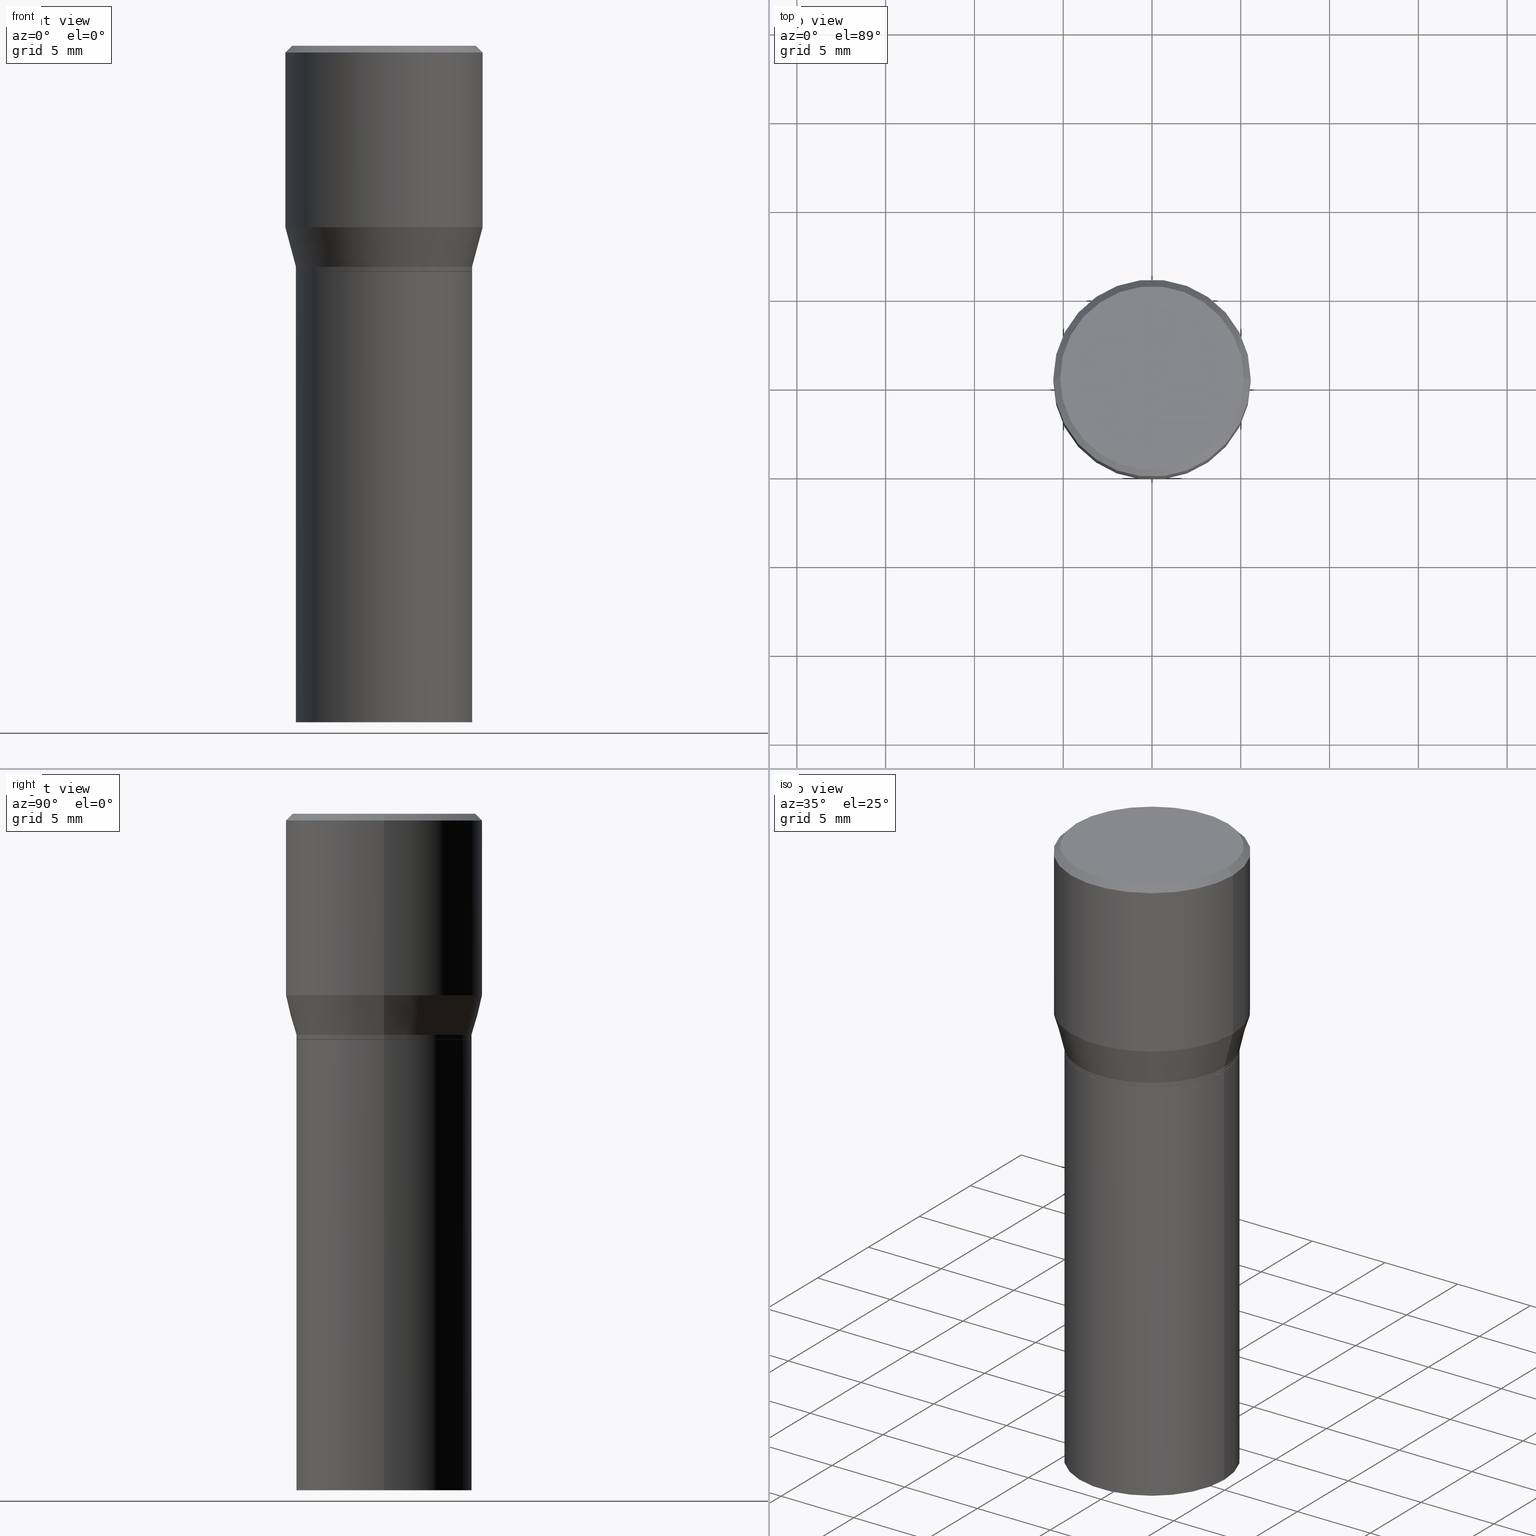
[diagram: canonical four-view strip — front | top / right | iso, engineering-drawing reading convention]
A machine part, canonical four-view strip (front | top / right | iso — engineering-drawing reading convention). The complete STEP part file that produces these views, byte-faithful:
ISO-10303-21;
HEADER;
FILE_DESCRIPTION (( 'STEP AP203' ),
    '1' );
FILE_NAME ('30349.STEP',
    '2024-03-13T16:08:32',
    ( '' ),
    ( '' ),
    'SwSTEP 2.0',
    'SolidWorks 2023',
    '' );
FILE_SCHEMA (( 'CONFIG_CONTROL_DESIGN' ));
ENDSEC;

DATA;
#1 = ORIENTED_EDGE ( 'NONE', *, *, #47, .T. ) ;
#2 =( NAMED_UNIT ( * ) SI_UNIT ( $, .STERADIAN. ) SOLID_ANGLE_UNIT ( ) );
#3 = CARTESIAN_POINT ( 'NONE',  ( -0.1952999999999999736, -3.231358930936662090E-16, -0.4900000000000001021 ) ) ;
#4 = CARTESIAN_POINT ( 'NONE',  ( -0.1953000000000000014, -2.103791375903670501E-15, -1.500000000000000222 ) ) ;
#5 = DIRECTION ( 'NONE',  ( 1.000000000000000000, -6.982962677686265922E-15, 0.000000000000000000 ) ) ;
#6 = ADVANCED_FACE ( 'NONE', ( #87 ), #302, .F. ) ;
#7 = CIRCLE ( 'NONE', #125, 0.1953000000000000014 ) ;
#8 = ORIENTED_EDGE ( 'NONE', *, *, #269, .F. ) ;
#9 = DIRECTION ( 'NONE',  ( -2.445468806185136597E-29, 3.491481338843145583E-15, 1.000000000000000000 ) ) ;
#10 = CALENDAR_DATE ( 2024, 13, 3 ) ;
#11 = ORIENTED_EDGE ( 'NONE', *, *, #136, .T. ) ;
#12 = FACE_OUTER_BOUND ( 'NONE', #127, .T. ) ;
#13 = EDGE_LOOP ( 'NONE', ( #238, #435, #278, #149 ) ) ;
#14 = EDGE_CURVE ( 'NONE', #396, #152, #409, .T. ) ;
#15 = CARTESIAN_POINT ( 'NONE',  ( 0.1952999999999999736, -1.363772610952127497E-15, 9.523173243129459375E-30 ) ) ;
#16 = CARTESIAN_POINT ( 'NONE',  ( -0.1952999999999999736, -8.704348440421619739E-17, -0.4900000000000001021 ) ) ;
#17 = AXIS2_PLACEMENT_3D ( 'NONE', #450, #308, #277 ) ;
#18 = DIRECTION ( 'NONE',  ( 1.000000000000000000, -6.982962677686265922E-15, 0.000000000000000000 ) ) ;
#19 = DIMENSIONAL_EXPONENTS ( 1.000000000000000000, 0.000000000000000000, 0.000000000000000000, 0.000000000000000000, 0.000000000000000000, 0.000000000000000000, 0.000000000000000000 ) ;
#20 = COORDINATED_UNIVERSAL_TIME_OFFSET ( 5, 0, .BEHIND. ) ;
#21 = CARTESIAN_POINT ( 'NONE',  ( -2.592568563193567003E-45, 3.701500806376036554E-31, 1.060151966214568974E-16 ) ) ;
#22 = SHAPE_DEFINITION_REPRESENTATION ( #121, #113 ) ;
#23 = AXIS2_PLACEMENT_3D ( 'NONE', #186, #430, #221 ) ;
#24 = ORIENTED_EDGE ( 'NONE', *, *, #235, .F. ) ;
#25 = DESIGN_CONTEXT ( 'detailed design', #193, 'design' ) ;
#26 = ORIENTED_EDGE ( 'NONE', *, *, #300, .T. ) ;
#27 = DIRECTION ( 'NONE',  ( -2.445468806185136597E-29, 3.491481338843145583E-15, 1.000000000000000000 ) ) ;
#28 = DIRECTION ( 'NONE',  ( 1.000000000000000000, -6.982962677686265922E-15, 4.876176775795934672E-29 ) ) ;
#29 = ADVANCED_FACE ( 'NONE', ( #12 ), #441, .F. ) ;
#30 = MECHANICAL_CONTEXT ( 'NONE', #138, 'mechanical' ) ;
#31 = CYLINDRICAL_SURFACE ( 'NONE', #215, 0.1953000000000000014 ) ;
#32 = AXIS2_PLACEMENT_3D ( 'NONE', #198, #124, #208 ) ;
#33 = AXIS2_PLACEMENT_3D ( 'NONE', #311, #309, #242 ) ;
#34 = DIRECTION ( 'NONE',  ( -2.445468806185136597E-29, 3.491481338843145583E-15, 1.000000000000000000 ) ) ;
#35 = ORIENTED_EDGE ( 'NONE', *, *, #119, .T. ) ;
#36 = EDGE_CURVE ( 'NONE', #396, #263, #356, .T. ) ;
#37 = LINE ( 'NONE', #457, #76 ) ;
#38 = ORIENTED_EDGE ( 'NONE', *, *, #413, .F. ) ;
#39 = PERSON_AND_ORGANIZATION ( #284, #373 ) ;
#40 = AXIS2_PLACEMENT_3D ( 'NONE', #433, #9, #368 ) ;
#41 = DIRECTION ( 'NONE',  ( 2.438088387897960049E-29, -3.491481338843145188E-15, -1.000000000000000000 ) ) ;
#42 = ORIENTED_EDGE ( 'NONE', *, *, #111, .T. ) ;
#43 = CIRCLE ( 'NONE', #313, 0.2187500000000000000 ) ;
#44 = AXIS2_PLACEMENT_3D ( 'NONE', #231, #156, #404 ) ;
#45 = AXIS2_PLACEMENT_3D ( 'NONE', #68, #27, #64 ) ;
#46 = ORIENTED_EDGE ( 'NONE', *, *, #175, .F. ) ;
#47 = EDGE_CURVE ( 'NONE', #82, #312, #239, .T. ) ;
#48 = EDGE_CURVE ( 'NONE', #306, #312, #43, .T. ) ;
#49 = EDGE_CURVE ( 'NONE', #266, #263, #340, .T. ) ;
#50 = EDGE_LOOP ( 'NONE', ( #408, #1, #216, #326 ) ) ;
#51 = CARTESIAN_POINT ( 'NONE',  ( 3.668203209277705088E-31, -5.237222008264718399E-17, -0.01499999999999999944 ) ) ;
#52 = FACE_OUTER_BOUND ( 'NONE', #440, .T. ) ;
#53 = ORIENTED_EDGE ( 'NONE', *, *, #133, .T. ) ;
#54 = CIRCLE ( 'NONE', #33, 0.1953000000000000014 ) ;
#55 = LINE ( 'NONE', #131, #280 ) ;
#56 = CC_DESIGN_PERSON_AND_ORGANIZATION_ASSIGNMENT ( #211, #169, ( #256 ) ) ;
#57 = PERSON_AND_ORGANIZATION ( #284, #373 ) ;
#58 = DIRECTION ( 'NONE',  ( -2.445468806185136597E-29, 3.491481338843145583E-15, 1.000000000000000000 ) ) ;
#59 = CONICAL_SURFACE ( 'NONE', #23, 0.2187500000000000000, 0.7853981633974450594 ) ;
#60 = ORIENTED_EDGE ( 'NONE', *, *, #324, .F. ) ;
#61 = CC_DESIGN_APPROVAL ( #330, ( #256 ) ) ;
#62 = DIRECTION ( 'NONE',  ( -2.445468806185136597E-29, 3.491481338843145583E-15, 1.000000000000000000 ) ) ;
#63 = DIRECTION ( 'NONE',  ( -2.445468806185136877E-29, 3.491481338843145188E-15, 1.000000000000000000 ) ) ;
#64 = DIRECTION ( 'NONE',  ( 1.000000000000000000, -6.982962677686266711E-15, 0.000000000000000000 ) ) ;
#65 = CARTESIAN_POINT ( 'NONE',  ( 3.668203209277705088E-31, -5.237222008264718399E-17, -0.01499999999999999944 ) ) ;
#66 = VERTEX_POINT ( 'NONE', #436 ) ;
#67 = AXIS2_PLACEMENT_3D ( 'NONE', #209, #447, #341 ) ;
#68 = CARTESIAN_POINT ( 'NONE',  ( 9.842606206466859638E-30, -1.405263310189985589E-15, -0.4024834085625100810 ) ) ;
#69 = CARTESIAN_POINT ( 'NONE',  ( 1.222734403092568719E-29, -1.745740669421573186E-15, -0.5000000000000001110 ) ) ;
#70 = VERTEX_POINT ( 'NONE', #75 ) ;
#71 = PERSON_AND_ORGANIZATION ( #284, #373 ) ;
#72 = CARTESIAN_POINT ( 'NONE',  ( 1.221511668689476057E-29, -1.743994928752151682E-15, -0.4995000000000001661 ) ) ;
#73 = DIRECTION ( 'NONE',  ( 1.000000000000000000, -6.982962677686267499E-15, 0.000000000000000000 ) ) ;
#74 = EDGE_CURVE ( 'NONE', #86, #266, #262, .T. ) ;
#75 = CARTESIAN_POINT ( 'NONE',  ( -0.1953000000000000014, -2.103791375903670501E-15, -0.5000000000000001110 ) ) ;
#76 = VECTOR ( 'NONE', #188, 39.37007874015748143 ) ;
#77 = CARTESIAN_POINT ( 'NONE',  ( 0.2187500000000000000, -1.579895305826517922E-15, -0.01499999999999999944 ) ) ;
#78 = SECURITY_CLASSIFICATION ( '', '', #90 ) ;
#79 = DIRECTION ( 'NONE',  ( -0.7071067811865452413, 2.468850131082233000E-15, -0.7071067811865497932 ) ) ;
#80 = DIRECTION ( 'NONE',  ( -2.445468806185136597E-29, 3.491481338843145583E-15, 1.000000000000000000 ) ) ;
#81 = EDGE_LOOP ( 'NONE', ( #123, #410, #8, #463 ) ) ;
#82 = VERTEX_POINT ( 'NONE', #117 ) ;
#83 = APPROVAL ( #107, 'UNSPECIFIED' ) ;
#84 = DIRECTION ( 'NONE',  ( 0.7071067811865715536, -2.468850131082509496E-15, 0.7071067811865232589 ) ) ;
#85 = APPROVAL_PERSON_ORGANIZATION ( #418, #464, #276 ) ;
#86 = VERTEX_POINT ( 'NONE', #445 ) ;
#87 = FACE_OUTER_BOUND ( 'NONE', #165, .T. ) ;
#88 = ORIENTED_EDGE ( 'NONE', *, *, #134, .F. ) ;
#89 = PERSON_AND_ORGANIZATION_ROLE ( 'design_supplier' ) ;
#90 = SECURITY_CLASSIFICATION_LEVEL ( 'unclassified' ) ;
#91 = EDGE_CURVE ( 'NONE', #86, #396, #416, .T. ) ;
#92 = AXIS2_PLACEMENT_3D ( 'NONE', #384, #58, #18 ) ;
#93 = CARTESIAN_POINT ( 'NONE',  ( -0.1952999999999999736, 1.387689962939475476E-15, -9.606680231267830396E-30 ) ) ;
#94 = CYLINDRICAL_SURFACE ( 'NONE', #237, 0.1953000000000000014 ) ;
#95 = PRODUCT_RELATED_PRODUCT_CATEGORY ( 'detail', '', ( #203 ) ) ;
#96 = CARTESIAN_POINT ( 'NONE',  ( 0.1948000000000000009, -3.106021799034858268E-15, -0.5000000000000001110 ) ) ;
#97 = FACE_OUTER_BOUND ( 'NONE', #118, .T. ) ;
#98 = AXIS2_PLACEMENT_3D ( 'NONE', #220, #282, #252 ) ;
#99 = DIRECTION ( 'NONE',  ( 1.000000000000000000, -6.982962677686265922E-15, 0.000000000000000000 ) ) ;
#100 = APPROVAL_ROLE ( '' ) ;
#101 = FACE_OUTER_BOUND ( 'NONE', #50, .T. ) ;
#102 = UNCERTAINTY_MEASURE_WITH_UNIT (LENGTH_MEASURE( 1.000000000000000082E-05 ), #388, 'distance_accuracy_value', 'NONE');
#103 = DIRECTION ( 'NONE',  ( -2.445468806185136597E-29, 3.491481338843145583E-15, 1.000000000000000000 ) ) ;
#104 = VECTOR ( 'NONE', #401, 39.37007874015748143 ) ;
#105 = ORIENTED_EDGE ( 'NONE', *, *, #155, .T. ) ;
#106 = LOCAL_TIME ( 12, 8, 32.00000000000000000, #135 ) ;
#107 = APPROVAL_STATUS ( 'not_yet_approved' ) ;
#108 = DIRECTION ( 'NONE',  ( -2.445468806185136597E-29, 3.491481338843145583E-15, 1.000000000000000000 ) ) ;
#109 =( NAMED_UNIT ( * ) PLANE_ANGLE_UNIT ( ) SI_UNIT ( $, .RADIAN. ) );
#110 = DIRECTION ( 'NONE',  ( -2.445468806185136597E-29, 3.491481338843145583E-15, 1.000000000000000000 ) ) ;
#111 = EDGE_CURVE ( 'NONE', #210, #70, #54, .T. ) ;
#112 = CARTESIAN_POINT ( 'NONE',  ( 1.222734403092568719E-29, -1.745740669421573186E-15, -0.5000000000000001110 ) ) ;
#113 = ADVANCED_BREP_SHAPE_REPRESENTATION ( '30349', ( #316, #455, #453 ), #381 ) ;
#114 = FACE_OUTER_BOUND ( 'NONE', #234, .T. ) ;
#115 = CIRCLE ( 'NONE', #45, 0.2187500000000000000 ) ;
#116 = EDGE_LOOP ( 'NONE', ( #370, #360, #24, #60 ) ) ;
#117 = CARTESIAN_POINT ( 'NONE',  ( 0.2037499999999999867, -1.475466312070559275E-15, 1.060151966214670170E-16 ) ) ;
#118 = EDGE_LOOP ( 'NONE', ( #295, #257, #105, #38 ) ) ;
#119 = EDGE_CURVE ( 'NONE', #263, #396, #347, .T. ) ;
#120 = DIRECTION ( 'NONE',  ( -2.438088387897960049E-29, 3.491481338843145188E-15, 1.000000000000000000 ) ) ;
#121 = PRODUCT_DEFINITION_SHAPE ( 'NONE', 'NONE',  #190 ) ;
#122 = CARTESIAN_POINT ( 'NONE',  ( 0.1952999999999999736, -3.074598466985269231E-15, -0.4900000000000001021 ) ) ;
#123 = ORIENTED_EDGE ( 'NONE', *, *, #164, .T. ) ;
#124 = DIRECTION ( 'NONE',  ( 2.438088387897960049E-29, -3.491481338843145188E-15, -1.000000000000000000 ) ) ;
#125 = AXIS2_PLACEMENT_3D ( 'NONE', #395, #456, #358 ) ;
#126 = CONICAL_SURFACE ( 'NONE', #176, 0.1948000000000000009, 0.7853981633974824739 ) ;
#127 = EDGE_LOOP ( 'NONE', ( #42, #375 ) ) ;
#128 = EDGE_LOOP ( 'NONE', ( #137, #223, #264, #204 ) ) ;
#129 = AXIS2_PLACEMENT_3D ( 'NONE', #267, #411, #5 ) ;
#130 = DATE_TIME_ROLE ( 'classification_date' ) ;
#131 = CARTESIAN_POINT ( 'NONE',  ( -0.2187500000000000000, 1.554312234475219157E-15, -1.076017050993260622E-29 ) ) ;
#132 = LOCAL_TIME ( 12, 8, 32.00000000000000000, #251 ) ;
#133 = EDGE_CURVE ( 'NONE', #82, #225, #334, .T. ) ;
#134 = EDGE_CURVE ( 'NONE', #152, #306, #55, .T. ) ;
#135 = COORDINATED_UNIVERSAL_TIME_OFFSET ( 5, 0, .BEHIND. ) ;
#136 = EDGE_CURVE ( 'NONE', #225, #82, #412, .T. ) ;
#137 = ORIENTED_EDGE ( 'NONE', *, *, #379, .F. ) ;
#138 = APPLICATION_CONTEXT ( 'configuration controlled 3d designs of mechanical parts and assemblies' ) ;
#139 = CARTESIAN_POINT ( 'NONE',  ( 9.842606206466859638E-30, -1.405263310189985589E-15, -0.4024834085625100810 ) ) ;
#140 = CALENDAR_DATE ( 2024, 13, 3 ) ;
#141 = CLOSED_SHELL ( 'NONE', ( #191, #160, #226, #348, #390, #288, #349, #331, #365, #437, #310, #227 ) ) ;
#142 = CARTESIAN_POINT ( 'NONE',  ( 1.198279715030717173E-29, -1.710825856033141537E-15, -0.4900000000000001021 ) ) ;
#143 = VECTOR ( 'NONE', #84, 39.37007874015748854 ) ;
#144 = ORIENTED_EDGE ( 'NONE', *, *, #155, .F. ) ;
#145 = APPROVAL_STATUS ( 'not_yet_approved' ) ;
#146 = CARTESIAN_POINT ( 'NONE',  ( 0.1953000000000000014, -3.109513280373700880E-15, -0.5000000000000001110 ) ) ;
#147 = ADVANCED_FACE ( 'NONE', ( #382 ), #94, .T. ) ;
#148 = CARTESIAN_POINT ( 'NONE',  ( 0.000000000000000000, 0.000000000000000000, 0.000000000000000000 ) ) ;
#149 = ORIENTED_EDGE ( 'NONE', *, *, #49, .F. ) ;
#150 = DIRECTION ( 'NONE',  ( 0.000000000000000000, 0.000000000000000000, 1.000000000000000000 ) ) ;
#151 = CARTESIAN_POINT ( 'NONE',  ( 0.1952999999999999736, -3.074598466985269231E-15, -0.4900000000000001021 ) ) ;
#152 = VERTEX_POINT ( 'NONE', #327 ) ;
#153 = AXIS2_PLACEMENT_3D ( 'NONE', #65, #355, #361 ) ;
#154 = FACE_OUTER_BOUND ( 'NONE', #317, .T. ) ;
#155 = EDGE_CURVE ( 'NONE', #66, #210, #389, .T. ) ;
#156 = DIRECTION ( 'NONE',  ( -2.445468806185136597E-29, 3.491481338843145583E-15, 1.000000000000000000 ) ) ;
#157 = CARTESIAN_POINT ( 'NONE',  ( 0.2187500000000000000, -1.553106157095169608E-15, -0.01499999999999999944 ) ) ;
#158 = VECTOR ( 'NONE', #265, 39.37007874015748143 ) ;
#159 = DIRECTION ( 'NONE',  ( -1.000000000000000000, 6.982962677686265922E-15, -4.876176775795935793E-29 ) ) ;
#160 = ADVANCED_FACE ( 'NONE', ( #466 ), #232, .T. ) ;
#161 = ORIENTED_EDGE ( 'NONE', *, *, #268, .F. ) ;
#162 = CARTESIAN_POINT ( 'NONE',  ( 3.576687321579069994E-29, -5.368277968210015545E-15, -1.500000000000000222 ) ) ;
#163 = CARTESIAN_POINT ( 'NONE',  ( 0.000000000000000000, 0.000000000000000000, 0.000000000000000000 ) ) ;
#164 = EDGE_CURVE ( 'NONE', #332, #283, #392, .T. ) ;
#165 = EDGE_LOOP ( 'NONE', ( #236, #46 ) ) ;
#166 = ORIENTED_EDGE ( 'NONE', *, *, #48, .F. ) ;
#167 = CARTESIAN_POINT ( 'NONE',  ( 0.2187500000000000000, -2.932786395933856235E-15, -0.4024834085625100810 ) ) ;
#168 = VECTOR ( 'NONE', #63, 39.37007874015748143 ) ;
#169 = PERSON_AND_ORGANIZATION_ROLE ( 'creator' ) ;
#170 = CC_DESIGN_PERSON_AND_ORGANIZATION_ASSIGNMENT ( #351, #181, ( #190 ) ) ;
#171 = LINE ( 'NONE', #421, #158 ) ;
#172 = DIRECTION ( 'NONE',  ( 2.445468806185136597E-29, -3.491481338843145583E-15, -1.000000000000000000 ) ) ;
#173 = APPROVAL_DATE_TIME ( #415, #330 ) ;
#174 = DIRECTION ( 'NONE',  ( -2.445468806185136597E-29, 3.491481338843145583E-15, 1.000000000000000000 ) ) ;
#175 = EDGE_CURVE ( 'NONE', #350, #66, #270, .T. ) ;
#176 = AXIS2_PLACEMENT_3D ( 'NONE', #112, #205, #73 ) ;
#177 = CC_DESIGN_APPROVAL ( #464, ( #78 ) ) ;
#178 = ORIENTED_EDGE ( 'NONE', *, *, #374, .F. ) ;
#179 = FACE_OUTER_BOUND ( 'NONE', #428, .T. ) ;
#180 = ORIENTED_EDGE ( 'NONE', *, *, #14, .F. ) ;
#181 = PERSON_AND_ORGANIZATION_ROLE ( 'creator' ) ;
#182 = FACE_OUTER_BOUND ( 'NONE', #289, .T. ) ;
#183 = EDGE_LOOP ( 'NONE', ( #199, #419, #26, #187 ) ) ;
#184 = LINE ( 'NONE', #323, #143 ) ;
#185 = EDGE_CURVE ( 'NONE', #283, #332, #222, .T. ) ;
#186 = CARTESIAN_POINT ( 'NONE',  ( 3.668203209277705088E-31, -5.237222008264718399E-17, -0.01499999999999999944 ) ) ;
#187 = ORIENTED_EDGE ( 'NONE', *, *, #48, .T. ) ;
#188 = DIRECTION ( 'NONE',  ( -2.445468806185136877E-29, 3.491481338843145188E-15, 1.000000000000000000 ) ) ;
#189 = ORIENTED_EDGE ( 'NONE', *, *, #374, .T. ) ;
#190 = PRODUCT_DEFINITION ( 'UNKNOWN', '', #256, #25 ) ;
#191 = ADVANCED_FACE ( 'NONE', ( #425 ), #364, .T. ) ;
#192 = APPROVAL_DATE_TIME ( #285, #83 ) ;
#193 = APPLICATION_CONTEXT ( 'configuration controlled 3d designs of mechanical parts and assemblies' ) ;
#194 = CONICAL_SURFACE ( 'NONE', #357, 0.1952999999999999736, 0.2617993877991501295 ) ;
#195 = CC_DESIGN_SECURITY_CLASSIFICATION ( #78, ( #256 ) ) ;
#196 = ORIENTED_EDGE ( 'NONE', *, *, #14, .T. ) ;
#197 = DIRECTION ( 'NONE',  ( 1.000000000000000000, -6.982962677686266711E-15, 4.876176775795935232E-29 ) ) ;
#198 = CARTESIAN_POINT ( 'NONE',  ( 1.363772610952139922E-15, 0.1952999999999982528, -0.5000000000000007772 ) ) ;
#199 = ORIENTED_EDGE ( 'NONE', *, *, #47, .F. ) ;
#200 = AXIS2_PLACEMENT_3D ( 'NONE', #391, #103, #230 ) ;
#201 = FACE_OUTER_BOUND ( 'NONE', #128, .T. ) ;
#202 = AXIS2_PLACEMENT_3D ( 'NONE', #461, #429, #281 ) ;
#203 = PRODUCT ( '30349', '30349', '', ( #30 ) ) ;
#204 = ORIENTED_EDGE ( 'NONE', *, *, #74, .F. ) ;
#205 = DIRECTION ( 'NONE',  ( -2.445468806185136597E-29, 3.491481338843145583E-15, 1.000000000000000000 ) ) ;
#206 = FACE_OUTER_BOUND ( 'NONE', #116, .T. ) ;
#207 = ORIENTED_EDGE ( 'NONE', *, *, #91, .F. ) ;
#208 = DIRECTION ( 'NONE',  ( -1.000000000000000000, 6.982962677686265922E-15, -4.876176775795935793E-29 ) ) ;
#209 = CARTESIAN_POINT ( 'NONE',  ( 1.198279715030717173E-29, -1.710825856033141537E-15, -0.4900000000000001021 ) ) ;
#210 = VERTEX_POINT ( 'NONE', #146 ) ;
#211 = PERSON_AND_ORGANIZATION ( #284, #373 ) ;
#212 = VECTOR ( 'NONE', #272, 39.37007874015747433 ) ;
#213 = DATE_AND_TIME ( #449, #106 ) ;
#214 = PERSON_AND_ORGANIZATION_ROLE ( 'classification_officer' ) ;
#215 = AXIS2_PLACEMENT_3D ( 'NONE', #387, #62, #218 ) ;
#216 = ORIENTED_EDGE ( 'NONE', *, *, #235, .T. ) ;
#217 = PLANE ( 'NONE',  #202 ) ;
#218 = DIRECTION ( 'NONE',  ( 1.000000000000000000, -6.982962677686265922E-15, 4.876176775795935793E-29 ) ) ;
#219 = COORDINATED_UNIVERSAL_TIME_OFFSET ( 5, 0, .BEHIND. ) ;
#220 = CARTESIAN_POINT ( 'NONE',  ( 1.222734403092568719E-29, -1.745740669421573186E-15, -0.5000000000000001110 ) ) ;
#221 = DIRECTION ( 'NONE',  ( -1.000000000000000000, 6.982962677686266711E-15, 0.000000000000000000 ) ) ;
#222 = CIRCLE ( 'NONE', #366, 0.1948000000000000009 ) ;
#223 = ORIENTED_EDGE ( 'NONE', *, *, #185, .T. ) ;
#224 = DIRECTION ( 'NONE',  ( 1.000000000000000000, -6.982962677686267499E-15, 0.000000000000000000 ) ) ;
#225 = VERTEX_POINT ( 'NONE', #287 ) ;
#226 = ADVANCED_FACE ( 'NONE', ( #101 ), #59, .T. ) ;
#227 = ADVANCED_FACE ( 'NONE', ( #179 ), #427, .T. ) ;
#228 = EDGE_CURVE ( 'NONE', #66, #350, #7, .T. ) ;
#229 = APPROVAL_ROLE ( '' ) ;
#230 = DIRECTION ( 'NONE',  ( 1.000000000000000000, -6.982962677686269077E-15, 0.000000000000000000 ) ) ;
#231 = CARTESIAN_POINT ( 'NONE',  ( 1.221511668689476057E-29, -1.743994928752151682E-15, -0.4995000000000001661 ) ) ;
#232 = CONICAL_SURFACE ( 'NONE', #304, 0.1948000000000000009, 0.7853981633974824739 ) ;
#233 = CARTESIAN_POINT ( 'NONE',  ( 1.422778645578576487E-15, 0.2037499999999999867, -6.583817244785623957E-16 ) ) ;
#234 = EDGE_LOOP ( 'NONE', ( #11, #53 ) ) ;
#235 = EDGE_CURVE ( 'NONE', #312, #306, #292, .T. ) ;
#236 = ORIENTED_EDGE ( 'NONE', *, *, #228, .F. ) ;
#237 = AXIS2_PLACEMENT_3D ( 'NONE', #344, #321, #462 ) ;
#238 = ORIENTED_EDGE ( 'NONE', *, *, #269, .T. ) ;
#239 = LINE ( 'NONE', #157, #451 ) ;
#240 = CC_DESIGN_PERSON_AND_ORGANIZATION_ASSIGNMENT ( #378, #89, ( #256 ) ) ;
#241 = CARTESIAN_POINT ( 'NONE',  ( -0.1948000000000000009, -3.616034201608981156E-16, -0.5000000000000001110 ) ) ;
#242 = DIRECTION ( 'NONE',  ( 1.000000000000000000, -6.982962677686264344E-15, 0.000000000000000000 ) ) ;
#243 = CIRCLE ( 'NONE', #335, 0.1953000000000000014 ) ;
#244 = DIRECTION ( 'NONE',  ( 1.000000000000000000, -6.982962677686266711E-15, 4.875065411617369217E-29 ) ) ;
#245 = EDGE_CURVE ( 'NONE', #350, #70, #37, .T. ) ;
#246 = DIRECTION ( 'NONE',  ( -1.000000000000000000, 6.982962677686266711E-15, 0.000000000000000000 ) ) ;
#247 = AXIS2_PLACEMENT_3D ( 'NONE', #233, #41, #159 ) ;
#248 = CARTESIAN_POINT ( 'NONE',  ( 0.000000000000000000, 0.000000000000000000, 0.000000000000000000 ) ) ;
#249 = DIRECTION ( 'NONE',  ( 1.000000000000000000, -6.982962677686264344E-15, 0.000000000000000000 ) ) ;
#250 = CARTESIAN_POINT ( 'NONE',  ( 1.222734403092568719E-29, -1.745740669421573186E-15, -0.5000000000000001110 ) ) ;
#251 = COORDINATED_UNIVERSAL_TIME_OFFSET ( 5, 0, .BEHIND. ) ;
#252 = DIRECTION ( 'NONE',  ( 1.000000000000000000, -6.982962677686267499E-15, 0.000000000000000000 ) ) ;
#253 = APPLICATION_PROTOCOL_DEFINITION ( 'international standard', 'config_control_design', 1994, #193 ) ;
#254 = DIRECTION ( 'NONE',  ( 1.000000000000000000, -6.982962677686265922E-15, 4.876176775795934672E-29 ) ) ;
#255 = AXIS2_PLACEMENT_3D ( 'NONE', #148, #460, #28 ) ;
#256 = PRODUCT_DEFINITION_FORMATION_WITH_SPECIFIED_SOURCE ( 'ANY', '', #203, .NOT_KNOWN. ) ;
#257 = ORIENTED_EDGE ( 'NONE', *, *, #175, .T. ) ;
#258 = APPLICATION_PROTOCOL_DEFINITION ( 'international standard', 'config_control_design', 1994, #138 ) ;
#259 = DIRECTION ( 'NONE',  ( 1.000000000000000000, -6.982962677686266711E-15, 0.000000000000000000 ) ) ;
#260 = DIRECTION ( 'NONE',  ( 1.000000000000000000, -6.982962677686265922E-15, 4.876176775795935793E-29 ) ) ;
#261 = DIRECTION ( 'NONE',  ( 1.000000000000000000, -6.982962677686266711E-15, 0.000000000000000000 ) ) ;
#262 = CIRCLE ( 'NONE', #44, 0.1953000000000000014 ) ;
#263 = VERTEX_POINT ( 'NONE', #151 ) ;
#264 = ORIENTED_EDGE ( 'NONE', *, *, #290, .T. ) ;
#265 = DIRECTION ( 'NONE',  ( -2.445468806185136877E-29, 3.491481338843145188E-15, 1.000000000000000000 ) ) ;
#266 = VERTEX_POINT ( 'NONE', #286 ) ;
#267 = CARTESIAN_POINT ( 'NONE',  ( 1.198279715030717173E-29, -1.710825856033141537E-15, -0.4900000000000001021 ) ) ;
#268 = EDGE_CURVE ( 'NONE', #407, #152, #329, .T. ) ;
#269 = EDGE_CURVE ( 'NONE', #266, #86, #296, .T. ) ;
#270 = CIRCLE ( 'NONE', #200, 0.1953000000000000014 ) ;
#271 = ORIENTED_EDGE ( 'NONE', *, *, #417, .T. ) ;
#272 = DIRECTION ( 'NONE',  ( 0.2588190451025214611, 1.565188264969621573E-15, 0.9659258262890682012 ) ) ;
#273 = CALENDAR_DATE ( 2024, 13, 3 ) ;
#274 = ADVANCED_FACE ( 'NONE', ( #97 ), #31, .T. ) ;
#275 = LOCAL_TIME ( 12, 8, 32.00000000000000000, #363 ) ;
#276 = APPROVAL_ROLE ( '' ) ;
#277 = DIRECTION ( 'NONE',  ( 1.000000000000000000, -6.982962677686266711E-15, 4.875065411617369217E-29 ) ) ;
#278 = ORIENTED_EDGE ( 'NONE', *, *, #119, .F. ) ;
#279 = DIRECTION ( 'NONE',  ( -2.445468806185136597E-29, 3.491481338843145583E-15, 1.000000000000000000 ) ) ;
#280 = VECTOR ( 'NONE', #343, 39.37007874015748143 ) ;
#281 = DIRECTION ( 'NONE',  ( 1.000000000000000000, -6.982962677686265922E-15, 4.876176775795935793E-29 ) ) ;
#282 = DIRECTION ( 'NONE',  ( -2.445468806185136597E-29, 3.491481338843145583E-15, 1.000000000000000000 ) ) ;
#283 = VERTEX_POINT ( 'NONE', #353 ) ;
#284 = PERSON ( 'UNSPECIFIED', 'UNSPECIFIED', 'UNSPECIFIED', ('UNSPECIFIED'), ('UNSPECIFIED'), ('UNSPECIFIED') ) ;
#285 = DATE_AND_TIME ( #140, #275 ) ;
#286 = CARTESIAN_POINT ( 'NONE',  ( 0.1953000000000000014, -3.107767539704279377E-15, -0.4995000000000001661 ) ) ;
#287 = CARTESIAN_POINT ( 'NONE',  ( -0.2037499999999999867, 1.448964755619900421E-15, 1.060151966214468518E-16 ) ) ;
#288 = ADVANCED_FACE ( 'NONE', ( #182 ), #194, .T. ) ;
#289 = EDGE_LOOP ( 'NONE', ( #180, #385, #189, #328 ) ) ;
#290 = EDGE_CURVE ( 'NONE', #332, #266, #184, .T. ) ;
#291 = CARTESIAN_POINT ( 'NONE',  ( 0.1953000000000000014, -1.363772610952127695E-15, 9.523173243129462177E-30 ) ) ;
#292 = CIRCLE ( 'NONE', #153, 0.2187500000000000000 ) ;
#293 = APPROVAL_PERSON_ORGANIZATION ( #39, #83, #229 ) ;
#294 = FACE_OUTER_BOUND ( 'NONE', #301, .T. ) ;
#295 = ORIENTED_EDGE ( 'NONE', *, *, #245, .F. ) ;
#296 = CIRCLE ( 'NONE', #342, 0.1953000000000000014 ) ;
#297 = APPROVAL_PERSON_ORGANIZATION ( #459, #330, #100 ) ;
#298 = ORIENTED_EDGE ( 'NONE', *, *, #164, .F. ) ;
#299 = LINE ( 'NONE', #122, #212 ) ;
#300 = EDGE_CURVE ( 'NONE', #225, #306, #432, .T. ) ;
#301 = EDGE_LOOP ( 'NONE', ( #88, #271, #448, #166 ) ) ;
#302 = PLANE ( 'NONE',  #402 ) ;
#303 = ORIENTED_EDGE ( 'NONE', *, *, #245, .T. ) ;
#304 = AXIS2_PLACEMENT_3D ( 'NONE', #69, #325, #224 ) ;
#305 = CARTESIAN_POINT ( 'NONE',  ( 1.222734403092568719E-29, -1.745740669421573186E-15, -0.5000000000000001110 ) ) ;
#306 = VERTEX_POINT ( 'NONE', #367 ) ;
#307 = DATE_AND_TIME ( #273, #315 ) ;
#308 = DIRECTION ( 'NONE',  ( -2.445468806185136597E-29, 3.491481338843145583E-15, 1.000000000000000000 ) ) ;
#309 = DIRECTION ( 'NONE',  ( -2.445468806185136597E-29, 3.491481338843145583E-15, 1.000000000000000000 ) ) ;
#310 = ADVANCED_FACE ( 'NONE', ( #201 ), #126, .T. ) ;
#311 = CARTESIAN_POINT ( 'NONE',  ( 1.222734403092568719E-29, -1.745740669421573186E-15, -0.5000000000000001110 ) ) ;
#312 = VERTEX_POINT ( 'NONE', #77 ) ;
#313 = AXIS2_PLACEMENT_3D ( 'NONE', #51, #110, #261 ) ;
#314 = VECTOR ( 'NONE', #79, 39.37007874015748143 ) ;
#315 = LOCAL_TIME ( 12, 8, 32.00000000000000000, #20 ) ;
#316 = MANIFOLD_SOLID_BREP ( 'Body-Move/Copy2[1]', #371 ) ;
#317 = EDGE_LOOP ( 'NONE', ( #298, #337 ) ) ;
#318 = CC_DESIGN_DATE_AND_TIME_ASSIGNMENT ( #354, #322, ( #190 ) ) ;
#319 = DIRECTION ( 'NONE',  ( -2.445468806185136597E-29, 3.491481338843145583E-15, 1.000000000000000000 ) ) ;
#320 = CALENDAR_DATE ( 2024, 13, 3 ) ;
#321 = DIRECTION ( 'NONE',  ( -2.445468806185136597E-29, 3.491481338843145583E-15, 1.000000000000000000 ) ) ;
#322 = DATE_TIME_ROLE ( 'creation_date' ) ;
#323 = CARTESIAN_POINT ( 'NONE',  ( 0.1948000000000000009, -3.106021799034858268E-15, -0.5000000000000001110 ) ) ;
#324 = EDGE_CURVE ( 'NONE', #407, #312, #171, .T. ) ;
#325 = DIRECTION ( 'NONE',  ( -2.445468806185136597E-29, 3.491481338843145583E-15, 1.000000000000000000 ) ) ;
#326 = ORIENTED_EDGE ( 'NONE', *, *, #300, .F. ) ;
#327 = CARTESIAN_POINT ( 'NONE',  ( -0.2187500000000000000, 1.490489242852337896E-16, -0.4024834085625100810 ) ) ;
#328 = ORIENTED_EDGE ( 'NONE', *, *, #417, .F. ) ;
#329 = CIRCLE ( 'NONE', #422, 0.2187500000000000000 ) ;
#330 = APPROVAL ( #145, 'UNSPECIFIED' ) ;
#331 = ADVANCED_FACE ( 'NONE', ( #352 ), #386, .T. ) ;
#332 = VERTEX_POINT ( 'NONE', #96 ) ;
#333 = VECTOR ( 'NONE', #338, 39.37007874015747433 ) ;
#334 = CIRCLE ( 'NONE', #17, 0.2037499999999999867 ) ;
#335 = AXIS2_PLACEMENT_3D ( 'NONE', #305, #431, #249 ) ;
#336 = CYLINDRICAL_SURFACE ( 'NONE', #40, 0.2187500000000000000 ) ;
#337 = ORIENTED_EDGE ( 'NONE', *, *, #185, .F. ) ;
#338 = DIRECTION ( 'NONE',  ( -0.2588190451025214611, 5.211531920934551042E-15, 0.9659258262890682012 ) ) ;
#339 = ORIENTED_EDGE ( 'NONE', *, *, #49, .T. ) ;
#340 = LINE ( 'NONE', #15, #104 ) ;
#341 = DIRECTION ( 'NONE',  ( 1.000000000000000000, -6.982962677686265922E-15, 0.000000000000000000 ) ) ;
#342 = AXIS2_PLACEMENT_3D ( 'NONE', #72, #279, #420 ) ;
#343 = DIRECTION ( 'NONE',  ( -2.445468806185136877E-29, 3.491481338843145188E-15, 1.000000000000000000 ) ) ;
#344 = CARTESIAN_POINT ( 'NONE',  ( 0.000000000000000000, 0.000000000000000000, 0.000000000000000000 ) ) ;
#345 = CARTESIAN_POINT ( 'NONE',  ( 3.668203209277705088E-31, -5.237222008264718399E-17, -0.01499999999999999944 ) ) ;
#346 = APPROVAL_DATE_TIME ( #213, #464 ) ;
#347 = CIRCLE ( 'NONE', #92, 0.1952999999999999736 ) ;
#348 = ADVANCED_FACE ( 'NONE', ( #206 ), #336, .T. ) ;
#349 = ADVANCED_FACE ( 'NONE', ( #294 ), #406, .T. ) ;
#350 = VERTEX_POINT ( 'NONE', #4 ) ;
#351 = PERSON_AND_ORGANIZATION ( #284, #373 ) ;
#352 = FACE_OUTER_BOUND ( 'NONE', #183, .T. ) ;
#353 = CARTESIAN_POINT ( 'NONE',  ( -0.1948000000000000009, -3.589541929867870625E-16, -0.5000000000000001110 ) ) ;
#354 = DATE_AND_TIME ( #320, #423 ) ;
#355 = DIRECTION ( 'NONE',  ( -2.445468806185136597E-29, 3.491481338843145583E-15, 1.000000000000000000 ) ) ;
#356 = CIRCLE ( 'NONE', #129, 0.1952999999999999736 ) ;
#357 = AXIS2_PLACEMENT_3D ( 'NONE', #142, #424, #99 ) ;
#358 = DIRECTION ( 'NONE',  ( 1.000000000000000000, -6.982962677686269077E-15, 0.000000000000000000 ) ) ;
#359 = CC_DESIGN_DATE_AND_TIME_ASSIGNMENT ( #307, #130, ( #78 ) ) ;
#360 = ORIENTED_EDGE ( 'NONE', *, *, #134, .T. ) ;
#361 = DIRECTION ( 'NONE',  ( 1.000000000000000000, -6.982962677686266711E-15, 0.000000000000000000 ) ) ;
#362 = ORIENTED_EDGE ( 'NONE', *, *, #228, .T. ) ;
#363 = COORDINATED_UNIVERSAL_TIME_OFFSET ( 5, 0, .BEHIND. ) ;
#364 = CYLINDRICAL_SURFACE ( 'NONE', #255, 0.1952999999999999736 ) ;
#365 = ADVANCED_FACE ( 'NONE', ( #114 ), #439, .F. ) ;
#366 = AXIS2_PLACEMENT_3D ( 'NONE', #250, #34, #398 ) ;
#367 = CARTESIAN_POINT ( 'NONE',  ( -0.2187500000000000000, 8.254944693389027239E-16, -0.01499999999999999944 ) ) ;
#368 = DIRECTION ( 'NONE',  ( 1.000000000000000000, -6.982962677686266711E-15, 4.876176775795935232E-29 ) ) ;
#369 = ORIENTED_EDGE ( 'NONE', *, *, #111, .F. ) ;
#370 = ORIENTED_EDGE ( 'NONE', *, *, #268, .T. ) ;
#371 = CLOSED_SHELL ( 'NONE', ( #147, #6, #274, #29 ) ) ;
#372 = AXIS2_PLACEMENT_3D ( 'NONE', #248, #319, #254 ) ;
#373 = ORGANIZATION ( 'UNSPECIFIED', 'UNSPECIFIED', '' ) ;
#374 = EDGE_CURVE ( 'NONE', #263, #407, #299, .T. ) ;
#375 = ORIENTED_EDGE ( 'NONE', *, *, #413, .T. ) ;
#376 = DIRECTION ( 'NONE',  ( 0.7071067811865452413, -7.319954787623248157E-15, -0.7071067811865497932 ) ) ;
#377 = DIRECTION ( 'NONE',  ( -0.7071067811865715536, 7.493145998870439357E-15, 0.7071067811865232589 ) ) ;
#378 = PERSON_AND_ORGANIZATION ( #284, #373 ) ;
#379 = EDGE_CURVE ( 'NONE', #283, #86, #414, .T. ) ;
#380 = VECTOR ( 'NONE', #377, 39.37007874015748854 ) ;
#381 =( GEOMETRIC_REPRESENTATION_CONTEXT ( 3 ) GLOBAL_UNCERTAINTY_ASSIGNED_CONTEXT ( ( #102 ) ) GLOBAL_UNIT_ASSIGNED_CONTEXT ( ( #388, #109, #2 ) ) REPRESENTATION_CONTEXT ( 'NONE', 'WORKASPACE' ) );
#382 = FACE_OUTER_BOUND ( 'NONE', #438, .T. ) ;
#383 = APPROVAL_STATUS ( 'not_yet_approved' ) ;
#384 = CARTESIAN_POINT ( 'NONE',  ( 1.198279715030717173E-29, -1.710825856033141537E-15, -0.4900000000000001021 ) ) ;
#385 = ORIENTED_EDGE ( 'NONE', *, *, #36, .T. ) ;
#386 = CONICAL_SURFACE ( 'NONE', #444, 0.2187500000000000000, 0.7853981633974450594 ) ;
#387 = CARTESIAN_POINT ( 'NONE',  ( 0.000000000000000000, 0.000000000000000000, 0.000000000000000000 ) ) ;
#388 =( CONVERSION_BASED_UNIT ( 'INCH', #397 ) LENGTH_UNIT ( ) NAMED_UNIT ( #19 ) );
#389 = LINE ( 'NONE', #291, #168 ) ;
#390 = ADVANCED_FACE ( 'NONE', ( #52 ), #434, .T. ) ;
#391 = CARTESIAN_POINT ( 'NONE',  ( 3.668203209277704895E-29, -5.237222008264718177E-15, -1.500000000000000222 ) ) ;
#392 = CIRCLE ( 'NONE', #98, 0.1948000000000000009 ) ;
#393 = CC_DESIGN_APPROVAL ( #83, ( #190 ) ) ;
#394 =( LENGTH_UNIT ( ) NAMED_UNIT ( * ) SI_UNIT ( $, .METRE. ) );
#395 = CARTESIAN_POINT ( 'NONE',  ( 3.668203209277704895E-29, -5.237222008264718177E-15, -1.500000000000000222 ) ) ;
#396 = VERTEX_POINT ( 'NONE', #16 ) ;
#397 = LENGTH_MEASURE_WITH_UNIT ( LENGTH_MEASURE( 0.02539999999999999897 ), #394 );
#398 = DIRECTION ( 'NONE',  ( 1.000000000000000000, -6.982962677686267499E-15, 0.000000000000000000 ) ) ;
#399 = CC_DESIGN_PERSON_AND_ORGANIZATION_ASSIGNMENT ( #71, #465, ( #203 ) ) ;
#400 = DIRECTION ( 'NONE',  ( 1.000000000000000000, 0.000000000000000000, 0.000000000000000000 ) ) ;
#401 = DIRECTION ( 'NONE',  ( -2.445468806185136877E-29, 3.491481338843145188E-15, 1.000000000000000000 ) ) ;
#402 = AXIS2_PLACEMENT_3D ( 'NONE', #162, #120, #260 ) ;
#403 = AXIS2_PLACEMENT_3D ( 'NONE', #163, #80, #197 ) ;
#404 = DIRECTION ( 'NONE',  ( 1.000000000000000000, -6.982962677686265922E-15, 0.000000000000000000 ) ) ;
#405 = CARTESIAN_POINT ( 'NONE',  ( -0.2187500000000000000, 1.475150865661223567E-15, -0.01499999999999999944 ) ) ;
#406 = CYLINDRICAL_SURFACE ( 'NONE', #403, 0.2187500000000000000 ) ;
#407 = VERTEX_POINT ( 'NONE', #167 ) ;
#408 = ORIENTED_EDGE ( 'NONE', *, *, #133, .F. ) ;
#409 = LINE ( 'NONE', #3, #333 ) ;
#410 = ORIENTED_EDGE ( 'NONE', *, *, #379, .T. ) ;
#411 = DIRECTION ( 'NONE',  ( -2.445468806185136597E-29, 3.491481338843145583E-15, 1.000000000000000000 ) ) ;
#412 = CIRCLE ( 'NONE', #452, 0.2037499999999999867 ) ;
#413 = EDGE_CURVE ( 'NONE', #70, #210, #243, .T. ) ;
#414 = LINE ( 'NONE', #241, #380 ) ;
#415 = DATE_AND_TIME ( #10, #132 ) ;
#416 = LINE ( 'NONE', #93, #458 ) ;
#417 = EDGE_CURVE ( 'NONE', #152, #407, #115, .T. ) ;
#418 = PERSON_AND_ORGANIZATION ( #284, #373 ) ;
#419 = ORIENTED_EDGE ( 'NONE', *, *, #136, .F. ) ;
#420 = DIRECTION ( 'NONE',  ( 1.000000000000000000, -6.982962677686265922E-15, 0.000000000000000000 ) ) ;
#421 = CARTESIAN_POINT ( 'NONE',  ( 0.2187500000000000000, -1.527523085743870843E-15, 1.066663669705360885E-29 ) ) ;
#422 = AXIS2_PLACEMENT_3D ( 'NONE', #139, #108, #259 ) ;
#423 = LOCAL_TIME ( 12, 8, 32.00000000000000000, #219 ) ;
#424 = DIRECTION ( 'NONE',  ( -2.445468806185136597E-29, 3.491481338843145583E-15, 1.000000000000000000 ) ) ;
#425 = FACE_OUTER_BOUND ( 'NONE', #13, .T. ) ;
#426 = CARTESIAN_POINT ( 'NONE',  ( 0.000000000000000000, 0.000000000000000000, 0.000000000000000000 ) ) ;
#427 = CYLINDRICAL_SURFACE ( 'NONE', #372, 0.1952999999999999736 ) ;
#428 = EDGE_LOOP ( 'NONE', ( #207, #443, #339, #442 ) ) ;
#429 = DIRECTION ( 'NONE',  ( -2.438088387897960049E-29, 3.491481338843145188E-15, 1.000000000000000000 ) ) ;
#430 = DIRECTION ( 'NONE',  ( 2.445468806185136597E-29, -3.491481338843145583E-15, -1.000000000000000000 ) ) ;
#431 = DIRECTION ( 'NONE',  ( -2.445468806185136597E-29, 3.491481338843145583E-15, 1.000000000000000000 ) ) ;
#432 = LINE ( 'NONE', #405, #314 ) ;
#433 = CARTESIAN_POINT ( 'NONE',  ( 0.000000000000000000, 0.000000000000000000, 0.000000000000000000 ) ) ;
#434 = CONICAL_SURFACE ( 'NONE', #67, 0.1952999999999999736, 0.2617993877991501295 ) ;
#435 = ORIENTED_EDGE ( 'NONE', *, *, #91, .T. ) ;
#436 = CARTESIAN_POINT ( 'NONE',  ( 0.1953000000000000014, -6.600994619216846463E-15, -1.500000000000000222 ) ) ;
#437 = ADVANCED_FACE ( 'NONE', ( #154 ), #217, .F. ) ;
#438 = EDGE_LOOP ( 'NONE', ( #362, #303, #369, #144 ) ) ;
#439 = PLANE ( 'NONE',  #247 ) ;
#440 = EDGE_LOOP ( 'NONE', ( #35, #196, #161, #178 ) ) ;
#441 = PLANE ( 'NONE',  #32 ) ;
#442 = ORIENTED_EDGE ( 'NONE', *, *, #36, .F. ) ;
#443 = ORIENTED_EDGE ( 'NONE', *, *, #74, .T. ) ;
#444 = AXIS2_PLACEMENT_3D ( 'NONE', #345, #172, #246 ) ;
#445 = CARTESIAN_POINT ( 'NONE',  ( -0.1953000000000000014, -3.563049658126762559E-16, -0.4995000000000001661 ) ) ;
#446 = CC_DESIGN_PERSON_AND_ORGANIZATION_ASSIGNMENT ( #57, #214, ( #78 ) ) ;
#447 = DIRECTION ( 'NONE',  ( -2.445468806185136597E-29, 3.491481338843145583E-15, 1.000000000000000000 ) ) ;
#448 = ORIENTED_EDGE ( 'NONE', *, *, #324, .T. ) ;
#449 = CALENDAR_DATE ( 2024, 13, 3 ) ;
#450 = CARTESIAN_POINT ( 'NONE',  ( -2.592568563193567003E-45, 3.701500806376036554E-31, 1.060151966214568974E-16 ) ) ;
#451 = VECTOR ( 'NONE', #376, 39.37007874015748143 ) ;
#452 = AXIS2_PLACEMENT_3D ( 'NONE', #21, #174, #244 ) ;
#453 = AXIS2_PLACEMENT_3D ( 'NONE', #426, #150, #400 ) ;
#454 = DIRECTION ( 'NONE',  ( -2.445468806185136877E-29, 3.491481338843145188E-15, 1.000000000000000000 ) ) ;
#455 = MANIFOLD_SOLID_BREP ( 'Body-Move/Copy2[2]', #141 ) ;
#456 = DIRECTION ( 'NONE',  ( -2.445468806185136597E-29, 3.491481338843145583E-15, 1.000000000000000000 ) ) ;
#457 = CARTESIAN_POINT ( 'NONE',  ( -0.1953000000000000014, 1.387689962939475673E-15, -9.606680231267831797E-30 ) ) ;
#458 = VECTOR ( 'NONE', #454, 39.37007874015748143 ) ;
#459 = PERSON_AND_ORGANIZATION ( #284, #373 ) ;
#460 = DIRECTION ( 'NONE',  ( -2.445468806185136597E-29, 3.491481338843145583E-15, 1.000000000000000000 ) ) ;
#461 = CARTESIAN_POINT ( 'NONE',  ( 1.222734403092568719E-29, -1.745740669421573186E-15, -0.5000000000000001110 ) ) ;
#462 = DIRECTION ( 'NONE',  ( 1.000000000000000000, -6.982962677686265922E-15, 4.876176775795935793E-29 ) ) ;
#463 = ORIENTED_EDGE ( 'NONE', *, *, #290, .F. ) ;
#464 = APPROVAL ( #383, 'UNSPECIFIED' ) ;
#465 = PERSON_AND_ORGANIZATION_ROLE ( 'design_owner' ) ;
#466 = FACE_OUTER_BOUND ( 'NONE', #81, .T. ) ;
ENDSEC;
END-ISO-10303-21;
